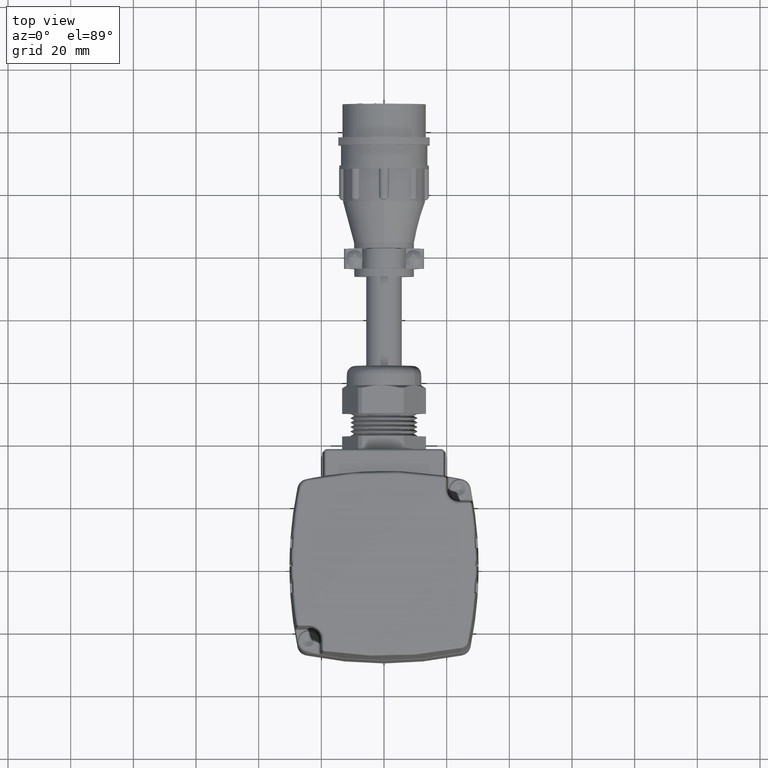
[diagram: clean part render]
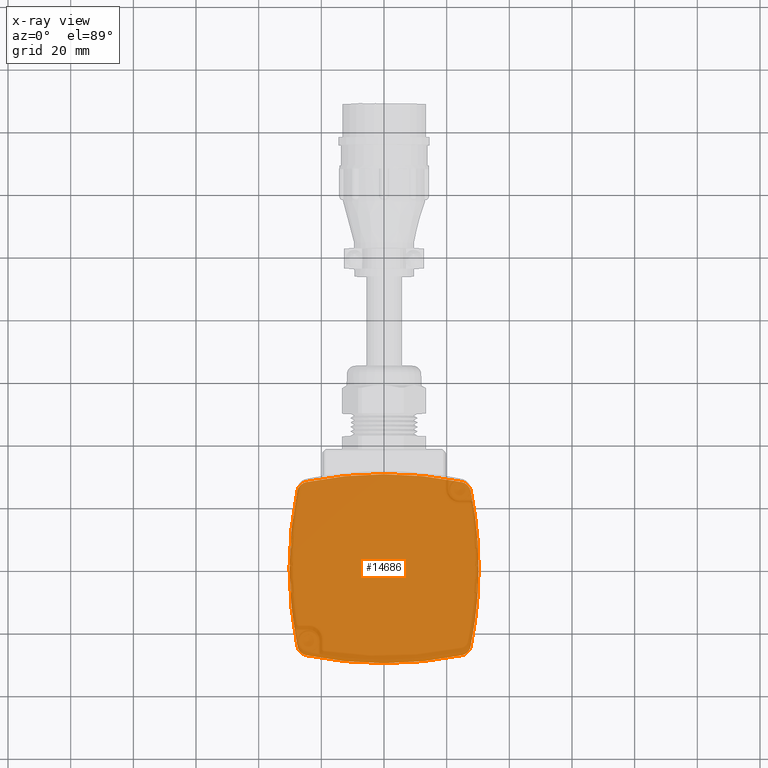
[diagram: x-ray — body ghosted, one internal face saturated and labeled with its STEP entity id]
A machine part, top view, then the same camera in x-ray: the body is ghosted and one INTERNAL B-rep face — a face not visible from any outside direction — is saturated and labeled: STEP entity #14686.
In plain terms, the highlighted planar face has unit normal (0, 0, 1).
Its self-contained STEP definition (entity closure, byte-faithful):
#88 = AXIS2_PLACEMENT_3D ( 'NONE', #13479, #13620, #34918 ) ;
#143 = AXIS2_PLACEMENT_3D ( 'NONE', #15000, #36295, #18051 ) ;
#442 = AXIS2_PLACEMENT_3D ( 'NONE', #17856, #39167, #20891 ) ;
#669 = ORIENTED_EDGE ( 'NONE', *, *, #5306, .T. ) ;
#1465 = CARTESIAN_POINT ( 'NONE',  ( -0.9783630889088981200, 1.087217603070765400, -1.840000000000000100 ) ) ;
#2027 = CARTESIAN_POINT ( 'NONE',  ( -3.659300000000000000, 1.516480271171051900E-032, -1.840000000000000100 ) ) ;
#3293 = EDGE_CURVE ( 'NONE', #8802, #39339, #23824, .T. ) ;
#4062 = CARTESIAN_POINT ( 'NONE',  ( -1.087217603070765900, 0.9783630889088960100, -1.840000000000000100 ) ) ;
#4127 = FACE_OUTER_BOUND ( 'NONE', #27530, .T. ) ;
#4128 = EDGE_CURVE ( 'NONE', #15742, #10819, #10933, .T. ) ;
#4481 = CIRCLE ( 'NONE', #26576, 0.1400000000000001500 ) ;
#5095 = DIRECTION ( 'NONE',  ( 1.000000000000000000, 0.0000000000000000000, 0.0000000000000000000 ) ) ;
#5306 = EDGE_CURVE ( 'NONE', #21197, #35254, #20410, .T. ) ;
#6100 = CIRCLE ( 'NONE', #442, 4.846300000000000300 ) ;
#6134 = CARTESIAN_POINT ( 'NONE',  ( 0.9501001187157098700, 0.9501001187157093200, -1.840000000000000100 ) ) ;
#7722 = ORIENTED_EDGE ( 'NONE', *, *, #3293, .T. ) ;
#8239 = DIRECTION ( 'NONE',  ( -0.0000000000000000000, -0.0000000000000000000, -1.000000000000000000 ) ) ;
#8802 = VERTEX_POINT ( 'NONE', #16919 ) ;
#8836 = AXIS2_PLACEMENT_3D ( 'NONE', #13014, #34322, #16097 ) ;
#9210 = DIRECTION ( 'NONE',  ( 1.000000000000000000, 1.951319995474471800E-015, 0.0000000000000000000 ) ) ;
#9395 = EDGE_CURVE ( 'NONE', #18873, #8802, #15450, .T. ) ;
#10819 = VERTEX_POINT ( 'NONE', #13004 ) ;
#10933 = CIRCLE ( 'NONE', #143, 4.846300000000000300 ) ;
#11218 = ORIENTED_EDGE ( 'NONE', *, *, #15376, .T. ) ;
#12647 = ORIENTED_EDGE ( 'NONE', *, *, #9395, .T. ) ;
#12995 = DIRECTION ( 'NONE',  ( -0.0000000000000000000, -0.0000000000000000000, -1.000000000000000000 ) ) ;
#13004 = CARTESIAN_POINT ( 'NONE',  ( -0.9783630889088966700, -1.087217603070766300, -1.840000000000000100 ) ) ;
#13014 = CARTESIAN_POINT ( 'NONE',  ( -0.9501001187157093200, -0.9501001187157102100, -1.840000000000000100 ) ) ;
#13479 = CARTESIAN_POINT ( 'NONE',  ( 0.0000000000000000000, 0.0000000000000000000, -1.840000000000000100 ) ) ;
#13620 = DIRECTION ( 'NONE',  ( 0.0000000000000000000, 0.0000000000000000000, 1.000000000000000000 ) ) ;
#13775 = ORIENTED_EDGE ( 'NONE', *, *, #33071, .T. ) ;
#14526 = CARTESIAN_POINT ( 'NONE',  ( -3.659300000000000000, 1.516480271171051900E-032, -1.840000000000000100 ) ) ;
#14686 = ADVANCED_FACE ( 'NONE', ( #4127 ), #31891, .F. ) ;
#15000 = CARTESIAN_POINT ( 'NONE',  ( 0.0000000000000000000, 3.659300000000000000, -1.840000000000000100 ) ) ;
#15224 = ORIENTED_EDGE ( 'NONE', *, *, #4128, .T. ) ;
#15376 = EDGE_CURVE ( 'NONE', #35254, #18873, #25615, .T. ) ;
#15450 = CIRCLE ( 'NONE', #25751, 0.1400000000000001500 ) ;
#15742 = VERTEX_POINT ( 'NONE', #36268 ) ;
#16097 = DIRECTION ( 'NONE',  ( 1.000000000000000000, 9.756599977372358800E-016, 0.0000000000000000000 ) ) ;
#16623 = DIRECTION ( 'NONE',  ( -0.0000000000000000000, -0.0000000000000000000, -1.000000000000000000 ) ) ;
#16919 = CARTESIAN_POINT ( 'NONE',  ( 1.087217603070765400, 0.9783630889088970100, -1.840000000000000100 ) ) ;
#17001 = VERTEX_POINT ( 'NONE', #38118 ) ;
#17591 = DIRECTION ( 'NONE',  ( 1.000000000000000000, 7.993605777301127100E-015, 0.0000000000000000000 ) ) ;
#17638 = EDGE_CURVE ( 'NONE', #17001, #15742, #4481, .T. ) ;
#17856 = CARTESIAN_POINT ( 'NONE',  ( 3.659300000000000000, -2.530801583817758400E-016, -1.840000000000000100 ) ) ;
#18051 = DIRECTION ( 'NONE',  ( 1.000000000000000000, 0.0000000000000000000, 0.0000000000000000000 ) ) ;
#18154 = AXIS2_PLACEMENT_3D ( 'NONE', #2027, #23418, #5095 ) ;
#18252 = ORIENTED_EDGE ( 'NONE', *, *, #17638, .T. ) ;
#18873 = VERTEX_POINT ( 'NONE', #29791 ) ;
#20146 = CIRCLE ( 'NONE', #8836, 0.1400000000000001500 ) ;
#20410 = CIRCLE ( 'NONE', #31980, 0.1400000000000001500 ) ;
#20891 = DIRECTION ( 'NONE',  ( 1.000000000000000000, 3.552713678800500900E-015, 0.0000000000000000000 ) ) ;
#21197 = VERTEX_POINT ( 'NONE', #4062 ) ;
#21879 = CIRCLE ( 'NONE', #18154, 4.846300000000000300 ) ;
#21928 = ORIENTED_EDGE ( 'NONE', *, *, #35840, .T. ) ;
#23418 = DIRECTION ( 'NONE',  ( -0.0000000000000000000, -0.0000000000000000000, -1.000000000000000000 ) ) ;
#23824 = CIRCLE ( 'NONE', #38037, 4.846300000000000300 ) ;
#25320 = ORIENTED_EDGE ( 'NONE', *, *, #36179, .T. ) ;
#25615 = CIRCLE ( 'NONE', #27264, 4.846300000000000300 ) ;
#25751 = AXIS2_PLACEMENT_3D ( 'NONE', #6134, #27518, #9210 ) ;
#26570 = CARTESIAN_POINT ( 'NONE',  ( 0.9501001187157093200, -0.9501001187157098700, -1.840000000000000100 ) ) ;
#26576 = AXIS2_PLACEMENT_3D ( 'NONE', #26570, #8239, #29647 ) ;
#27264 = AXIS2_PLACEMENT_3D ( 'NONE', #31281, #12995, #34296 ) ;
#27518 = DIRECTION ( 'NONE',  ( -0.0000000000000000000, -0.0000000000000000000, -1.000000000000000000 ) ) ;
#27530 = EDGE_LOOP ( 'NONE', ( #669, #11218, #12647, #7722, #25320, #18252, #15224, #13775, #21928 ) ) ;
#29647 = DIRECTION ( 'NONE',  ( 1.000000000000000000, 0.0000000000000000000, 0.0000000000000000000 ) ) ;
#29791 = CARTESIAN_POINT ( 'NONE',  ( 0.9783630889088976700, 1.087217603070765200, -1.840000000000000100 ) ) ;
#31281 = CARTESIAN_POINT ( 'NONE',  ( 0.0000000000000000000, -3.659300000000000000, -1.840000000000000100 ) ) ;
#31302 = CARTESIAN_POINT ( 'NONE',  ( 1.187000000000000300, 1.516480271171051900E-032, -1.840000000000000100 ) ) ;
#31891 = PLANE ( 'NONE',  #88 ) ;
#31980 = AXIS2_PLACEMENT_3D ( 'NONE', #34862, #16623, #37934 ) ;
#33071 = EDGE_CURVE ( 'NONE', #10819, #36095, #20146, .T. ) ;
#34296 = DIRECTION ( 'NONE',  ( 1.000000000000000000, -1.071025563411695400E-014, 0.0000000000000000000 ) ) ;
#34322 = DIRECTION ( 'NONE',  ( -0.0000000000000000000, -0.0000000000000000000, -1.000000000000000000 ) ) ;
#34480 = CARTESIAN_POINT ( 'NONE',  ( -1.087217603070765200, -0.9783630889088978900, -1.840000000000000100 ) ) ;
#34862 = CARTESIAN_POINT ( 'NONE',  ( -0.9501001187157098700, 0.9501001187157093200, -1.840000000000000100 ) ) ;
#34918 = DIRECTION ( 'NONE',  ( 1.000000000000000000, 0.0000000000000000000, -0.0000000000000000000 ) ) ;
#35254 = VERTEX_POINT ( 'NONE', #1465 ) ;
#35825 = DIRECTION ( 'NONE',  ( -0.0000000000000000000, -0.0000000000000000000, -1.000000000000000000 ) ) ;
#35840 = EDGE_CURVE ( 'NONE', #36095, #21197, #6100, .T. ) ;
#36095 = VERTEX_POINT ( 'NONE', #34480 ) ;
#36179 = EDGE_CURVE ( 'NONE', #39339, #17001, #21879, .T. ) ;
#36268 = CARTESIAN_POINT ( 'NONE',  ( 0.9783630889088972300, -1.087217603070765900, -1.840000000000000100 ) ) ;
#36295 = DIRECTION ( 'NONE',  ( -0.0000000000000000000, -0.0000000000000000000, -1.000000000000000000 ) ) ;
#37934 = DIRECTION ( 'NONE',  ( 1.000000000000000000, 0.0000000000000000000, 0.0000000000000000000 ) ) ;
#38037 = AXIS2_PLACEMENT_3D ( 'NONE', #14526, #35825, #17591 ) ;
#38118 = CARTESIAN_POINT ( 'NONE',  ( 1.087217603070765400, -0.9783630889088972300, -1.840000000000000100 ) ) ;
#39167 = DIRECTION ( 'NONE',  ( -0.0000000000000000000, -0.0000000000000000000, -1.000000000000000000 ) ) ;
#39339 = VERTEX_POINT ( 'NONE', #31302 ) ;